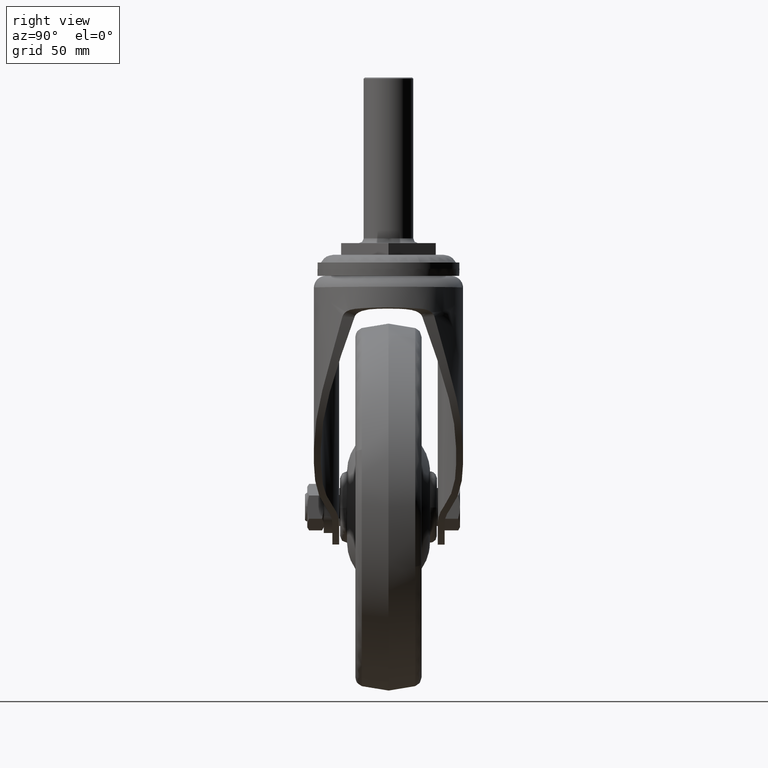
[diagram: clean part render]
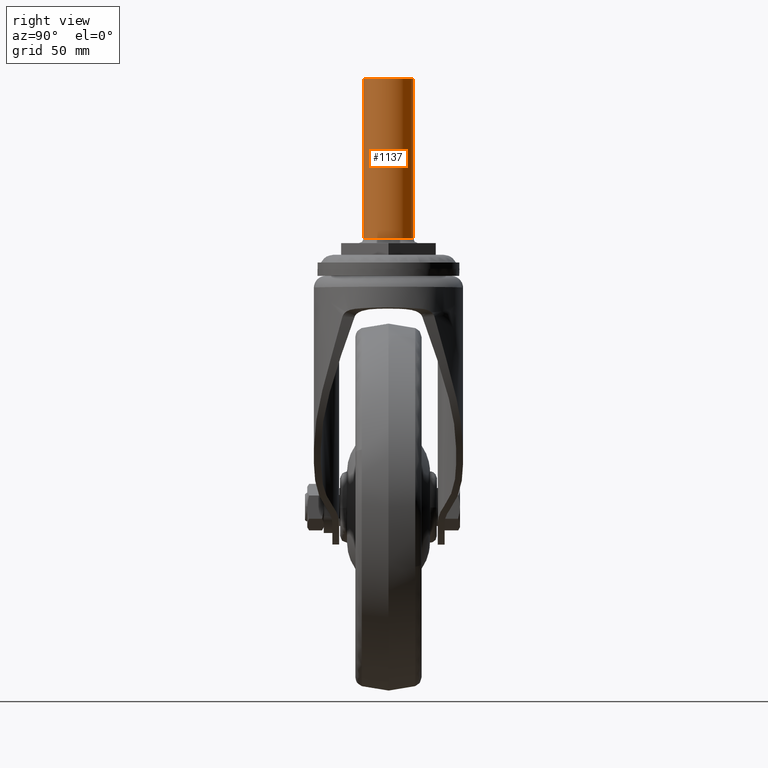
[diagram: same view with one face highlighted and labeled with its STEP entity id]
A machine part, right view. The second image highlights one B-rep face of the part: STEP entity #1137.
In plain terms, the highlighted face is a freeform B-spline surface patch.
Its self-contained STEP definition (entity closure, byte-faithful):
#95=CARTESIAN_POINT('',(-0.641009666088241,10.480415383497800,74.399999999745262));
#96=VERTEX_POINT('',#95);
#97=CARTESIAN_POINT('',(10.500000000000000,2.842171E-014,74.399999999999991));
#98=VERTEX_POINT('',#97);
#99=CARTESIAN_POINT('',(-0.641009666088241,10.480415383497800,74.399999999745262));
#100=CARTESIAN_POINT('',(-0.320804014659414,10.500000000183508,74.399999999748914));
#101=CARTESIAN_POINT('',(9.283245E-010,10.500000000180661,74.399999999752808));
#102=CARTESIAN_POINT('',(10.500000000449981,10.500000000087585,74.399999999880194));
#103=CARTESIAN_POINT('',(10.500000000000000,2.842171E-014,74.399999999999991));
#111=(BOUNDED_CURVE()B_SPLINE_CURVE(2,(#99,#100,#101,#102,#103),.UNSPECIFIED.,.F.,.U.)B_SPLINE_CURVE_WITH_KNOTS((3,2,3),(0.239332962210211,0.250000000000000,0.500000000000000),.UNSPECIFIED.)CURVE()GEOMETRIC_REPRESENTATION_ITEM()RATIONAL_B_SPLINE_CURVE((0.976072041605140,0.987502787866176,1.0,0.707106781186547,1.0))REPRESENTATION_ITEM(''));
#112=EDGE_CURVE('',#96,#98,#111,.T.);
#121=CARTESIAN_POINT('',(0.641009666088241,-10.480415383497750,74.399999999745262));
#122=VERTEX_POINT('',#121);
#128=CARTESIAN_POINT('',(10.500000000000000,2.842171E-014,74.399999999999991));
#129=CARTESIAN_POINT('',(10.499999999521656,-9.877413700781498,74.399999999872620));
#130=CARTESIAN_POINT('',(0.641009666088241,-10.480415383497752,74.399999999745262));
#138=(BOUNDED_CURVE()B_SPLINE_CURVE(2,(#128,#129,#130),.UNSPECIFIED.,.F.,.U.)B_SPLINE_CURVE_WITH_KNOTS((3,3),(0.500000000000000,0.739332962210211),.UNSPECIFIED.)CURVE()GEOMETRIC_REPRESENTATION_ITEM()RATIONAL_B_SPLINE_CURVE((1.0,0.719603993320372,0.976072041605139))REPRESENTATION_ITEM(''));
#139=EDGE_CURVE('',#98,#122,#138,.T.);
#1071=CARTESIAN_POINT('',(-0.641009665115998,10.480415383429630,76.087500000075124));
#1072=CARTESIAN_POINT('',(9.839405718313602,11.121425048545627,76.087500000075124));
#1073=CARTESIAN_POINT('',(10.480415383429600,0.641009665116027,76.087500000075124));
#1074=CARTESIAN_POINT('',(11.121425048545600,-9.839405718313573,76.087500000075124));
#1075=CARTESIAN_POINT('',(0.641009665115998,-10.480415383429570,76.087500000075124));
#1076=CARTESIAN_POINT('',(-0.641009665115998,10.480415383429630,5.170312496918285));
#1077=CARTESIAN_POINT('',(9.839405718313602,11.121425048545627,5.170312496918285));
#1078=CARTESIAN_POINT('',(10.480415383429600,0.641009665116027,5.170312496918285));
#1079=CARTESIAN_POINT('',(11.121425048545600,-9.839405718313573,5.170312496918285));
#1080=CARTESIAN_POINT('',(0.641009665115998,-10.480415383429570,5.170312496918285));
#1088=(BOUNDED_SURFACE()B_SPLINE_SURFACE(2,1,((#1071,#1076),(#1072,#1077),(#1073,#1078),(#1074,#1079),(#1075,#1080)),.UNSPECIFIED.,.F.,.F.,.U.)B_SPLINE_SURFACE_WITH_KNOTS((3,2,3),(2,2),(0.0,17.396969619669989,34.793939239339970),(0.0,70.917187503156853),.UNSPECIFIED.)GEOMETRIC_REPRESENTATION_ITEM()RATIONAL_B_SPLINE_SURFACE(((1.0,1.0),(0.707106781186548,0.707106781186548),(1.0,1.0),(0.707106781186548,0.707106781186548),(1.0,1.0)))REPRESENTATION_ITEM('')SURFACE());
#1089=CARTESIAN_POINT('',(-0.641009665699775,10.480415383393931,6.899999996995281));
#1090=VERTEX_POINT('',#1089);
#1091=CARTESIAN_POINT('',(-0.641009666088241,10.480415383497800,74.399999999745262));
#1092=CARTESIAN_POINT('',(-0.641009665699775,10.480415383393931,6.899999996995281));
#1093=QUASI_UNIFORM_CURVE('',1,(#1091,#1092),.UNSPECIFIED.,.F.,.U.);
#1094=EDGE_CURVE('',#96,#1090,#1093,.T.);
#1095=ORIENTED_EDGE('',*,*,#1094,.F.);
#1096=ORIENTED_EDGE('',*,*,#112,.T.);
#1097=ORIENTED_EDGE('',*,*,#139,.T.);
#1098=CARTESIAN_POINT('',(0.641009665699774,-10.480415383393870,6.899999996995281));
#1099=VERTEX_POINT('',#1098);
#1100=CARTESIAN_POINT('',(0.641009666088241,-10.480415383497750,74.399999999745262));
#1101=CARTESIAN_POINT('',(0.641009665699774,-10.480415383393870,6.899999996995281));
#1102=QUASI_UNIFORM_CURVE('',1,(#1100,#1101),.UNSPECIFIED.,.F.,.U.);
#1103=EDGE_CURVE('',#122,#1099,#1102,.T.);
#1104=ORIENTED_EDGE('',*,*,#1103,.T.);
#1105=CARTESIAN_POINT('',(10.500000000000000,2.884286E-014,6.899999996995280));
#1106=VERTEX_POINT('',#1105);
#1107=CARTESIAN_POINT('',(10.500000000000000,2.884286E-014,6.899999996995280));
#1108=CARTESIAN_POINT('',(10.500000000000000,-9.877413701958552,6.899999996995280));
#1109=CARTESIAN_POINT('',(0.641009665699776,-10.480415383393867,6.899999996995279));
#1117=(BOUNDED_CURVE()B_SPLINE_CURVE(2,(#1107,#1108,#1109),.UNSPECIFIED.,.F.,.U.)B_SPLINE_CURVE_WITH_KNOTS((3,3),(0.500000000000000,0.739332962232357),.UNSPECIFIED.)CURVE()GEOMETRIC_REPRESENTATION_ITEM()RATIONAL_B_SPLINE_CURVE((1.0,0.719603993294426,0.976072041652603))REPRESENTATION_ITEM(''));
#1118=EDGE_CURVE('',#1106,#1099,#1117,.T.);
#1119=ORIENTED_EDGE('',*,*,#1118,.F.);
#1120=CARTESIAN_POINT('',(-0.641009665699775,10.480415383393925,6.899999996995281));
#1121=CARTESIAN_POINT('',(-0.320804014927890,10.500000000000032,6.899999996995281));
#1122=CARTESIAN_POINT('',(0.0,10.500000000000030,6.899999996995280));
#1123=CARTESIAN_POINT('',(10.500000000000000,10.500000000000028,6.899999996995279));
#1124=CARTESIAN_POINT('',(10.500000000000000,2.884286E-014,6.899999996995280));
#1132=(BOUNDED_CURVE()B_SPLINE_CURVE(2,(#1120,#1121,#1122,#1123,#1124),.UNSPECIFIED.,.F.,.U.)B_SPLINE_CURVE_WITH_KNOTS((3,2,3),(0.239332962232357,0.250000000000000,0.500000000000000),.UNSPECIFIED.)CURVE()GEOMETRIC_REPRESENTATION_ITEM()RATIONAL_B_SPLINE_CURVE((0.976072041652603,0.987502787892122,1.0,0.707106781186547,1.0))REPRESENTATION_ITEM(''));
#1133=EDGE_CURVE('',#1090,#1106,#1132,.T.);
#1134=ORIENTED_EDGE('',*,*,#1133,.F.);
#1135=EDGE_LOOP('',(#1095,#1096,#1097,#1104,#1119,#1134));
#1136=FACE_OUTER_BOUND('',#1135,.T.);
#1137=ADVANCED_FACE('',(#1136),#1088,.T.);